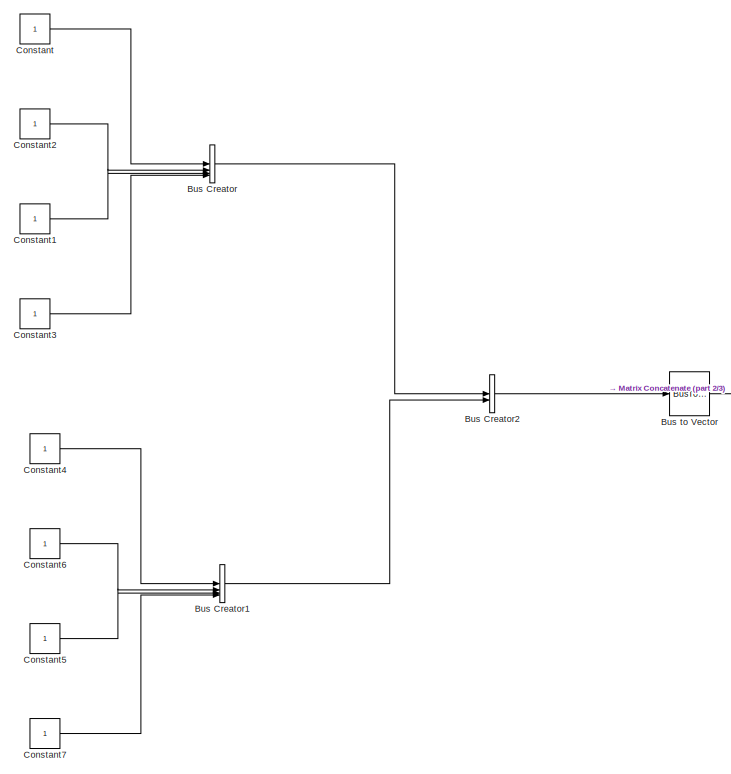
[diagram: root canvas - part 1/3, top left region]
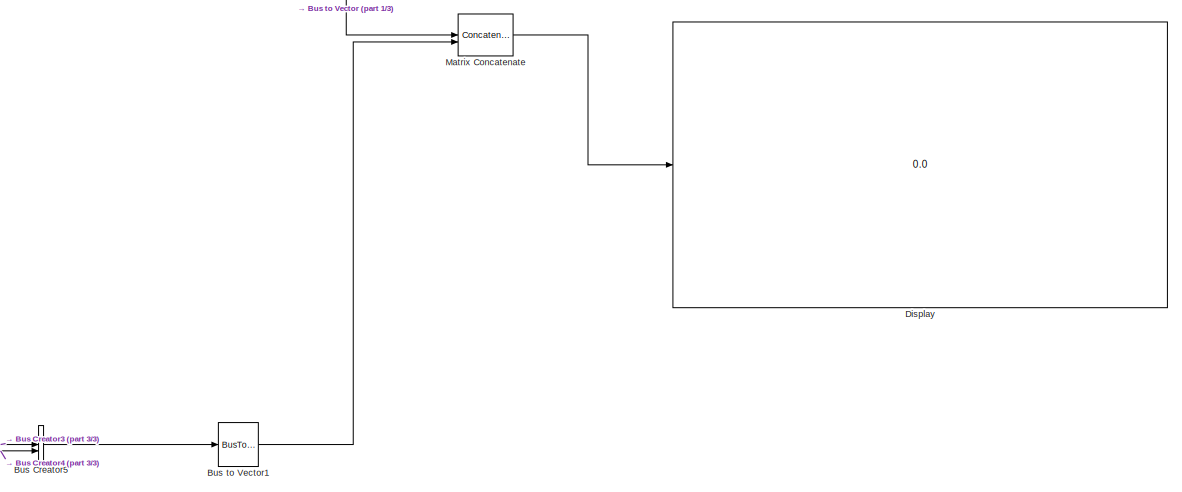
[diagram: root canvas - part 2/3, central region]
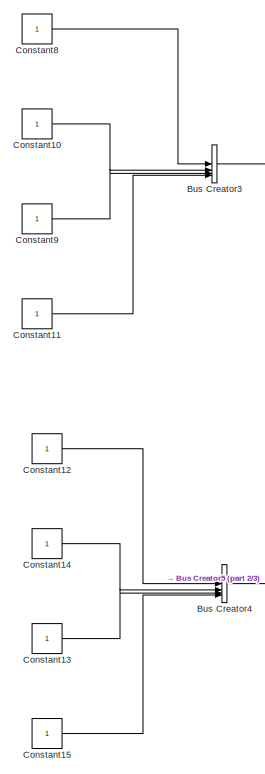
[diagram: root canvas - part 3/3, bottom left region]
MODEL slx_74caab444fb4
KIND model
CONFIG AbsTol = auto
CONFIG EnableMultiTasking = off
CONFIG FixedStep = auto
CONFIG MaxStep = auto
CONFIG MinStep = auto
CONFIG RelTol = 1e-3
CONFIG SampleTimeConstraint = Unconstrained
CONFIG SolverName = VariableStepAuto
CONFIG StartTime = 0.0
CONFIG StopTime = 10.0
BLOCK [BusCreator] Bus Creator
  DisplayOption = bar
  InheritFromInputs = on
  Inputs = 4
BLOCK [BusCreator] Bus Creator1
  DisplayOption = bar
  InheritFromInputs = on
  Inputs = 4
BLOCK [BusCreator] Bus Creator2
  DisplayOption = bar
  InheritFromInputs = on
  Inputs = 2
BLOCK [BusCreator] Bus Creator3
  DisplayOption = bar
  InheritFromInputs = on
  Inputs = 4
BLOCK [BusCreator] Bus Creator4
  DisplayOption = bar
  InheritFromInputs = on
  Inputs = 4
BLOCK [BusCreator] Bus Creator5
  DisplayOption = bar
  InheritFromInputs = on
  Inputs = 2
BLOCK [BusToVector] Bus to Vector
BLOCK [BusToVector] Bus to Vector1
BLOCK [Constant] Constant
BLOCK [Constant] Constant1
BLOCK [Constant] Constant10
BLOCK [Constant] Constant11
BLOCK [Constant] Constant12
BLOCK [Constant] Constant13
BLOCK [Constant] Constant14
BLOCK [Constant] Constant15
BLOCK [Constant] Constant2
BLOCK [Constant] Constant3
BLOCK [Constant] Constant4
BLOCK [Constant] Constant5
BLOCK [Constant] Constant6
BLOCK [Constant] Constant7
BLOCK [Constant] Constant8
BLOCK [Constant] Constant9
BLOCK [Display] Display
  Decimation = 1
BLOCK [Concatenate] Matrix Concatenate
  ConcatenateDimension = 2
  Mode = Multidimensional array
LINE Bus Creator1:1 -> Bus Creator2:2
LINE Bus Creator2:1 -> Bus to Vector:1
LINE Bus Creator3:1 -> Bus Creator5:1
LINE Bus Creator4:1 -> Bus Creator5:2
LINE Bus Creator5:1 -> Bus to Vector1:1
LINE Bus Creator:1 -> Bus Creator2:1
LINE Bus to Vector1:1 -> Matrix Concatenate:2
LINE Bus to Vector:1 -> Matrix Concatenate:1
LINE Constant10:1 -> Bus Creator3:2
LINE Constant11:1 -> Bus Creator3:4
LINE Constant12:1 -> Bus Creator4:1
LINE Constant13:1 -> Bus Creator4:3
LINE Constant14:1 -> Bus Creator4:2
LINE Constant15:1 -> Bus Creator4:4
LINE Constant1:1 -> Bus Creator:3
LINE Constant2:1 -> Bus Creator:2
LINE Constant3:1 -> Bus Creator:4
LINE Constant4:1 -> Bus Creator1:1
LINE Constant5:1 -> Bus Creator1:3
LINE Constant6:1 -> Bus Creator1:2
LINE Constant7:1 -> Bus Creator1:4
LINE Constant8:1 -> Bus Creator3:1
LINE Constant9:1 -> Bus Creator3:3
LINE Constant:1 -> Bus Creator:1
LINE Matrix Concatenate:1 -> Display:1
